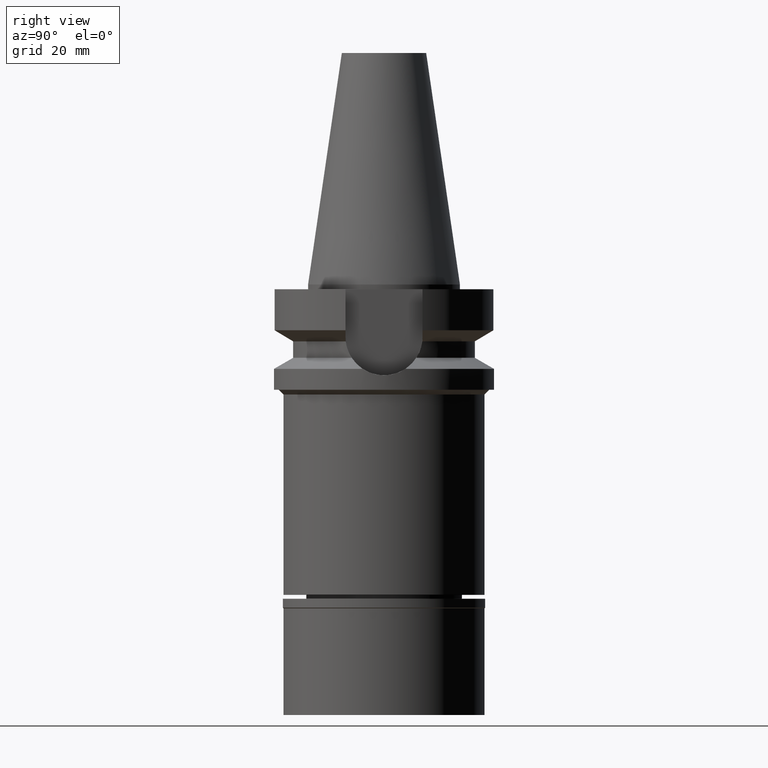
[diagram: clean part render]
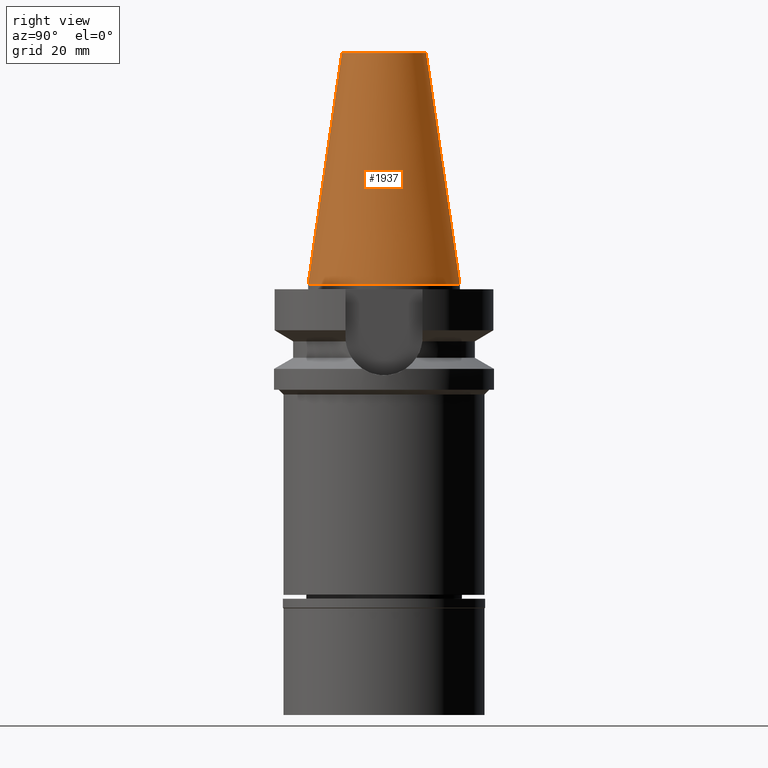
[diagram: same view with one face highlighted and labeled with its STEP entity id]
A machine part, right view. The second image highlights one B-rep face of the part: STEP entity #1937.
In plain terms, the highlighted conical surface has half-angle 8.297 deg.
Its self-contained STEP definition (entity closure, byte-faithful):
#15 = ORIENTED_EDGE ( 'NONE', *, *, #522, .T. ) ;
#89 = CIRCLE ( 'NONE', #2048, 8.816791732783000768 ) ;
#117 = VERTEX_POINT ( 'NONE', #921 ) ;
#196 = CIRCLE ( 'NONE', #2724, 15.87500000000000000 ) ;
#204 = CARTESIAN_POINT ( 'NONE',  ( 0.0000000000000000000, 8.816791732783000768, 48.39999999999999858 ) ) ;
#275 = EDGE_LOOP ( 'NONE', ( #15, #3002, #2422, #2522 ) ) ;
#338 = CARTESIAN_POINT ( 'NONE',  ( 0.0000000000000000000, -8.816791732783000768, 48.39999999999999858 ) ) ;
#369 = LINE ( 'NONE', #901, #2002 ) ;
#380 = DIRECTION ( 'NONE',  ( 0.0000000000000000000, 1.000000000000000000, 0.0000000000000000000 ) ) ;
#496 = VERTEX_POINT ( 'NONE', #3034 ) ;
#522 = EDGE_CURVE ( 'NONE', #547, #1713, #89, .T. ) ;
#547 = VERTEX_POINT ( 'NONE', #204 ) ;
#711 = CARTESIAN_POINT ( 'NONE',  ( 0.0000000000000000000, 0.0000000000000000000, -3.410605131648000255E-13 ) ) ;
#901 = CARTESIAN_POINT ( 'NONE',  ( 0.0000000000000000000, -8.816791732783000768, 48.39999999999999858 ) ) ;
#921 = CARTESIAN_POINT ( 'NONE',  ( 0.0000000000000000000, -15.87500000000000000, -3.410605131648000255E-13 ) ) ;
#1312 = DIRECTION ( 'NONE',  ( 0.0000000000000000000, 0.1443043893539925626, -0.9895333461855498891 ) ) ;
#1356 = DIRECTION ( 'NONE',  ( 0.0000000000000000000, 0.0000000000000000000, -1.000000000000000000 ) ) ;
#1428 = DIRECTION ( 'NONE',  ( 0.0000000000000000000, 1.000000000000000000, 0.0000000000000000000 ) ) ;
#1457 = EDGE_CURVE ( 'NONE', #496, #117, #196, .T. ) ;
#1627 = EDGE_CURVE ( 'NONE', #1713, #117, #369, .T. ) ;
#1713 = VERTEX_POINT ( 'NONE', #338 ) ;
#1865 = DIRECTION ( 'NONE',  ( 0.0000000000000000000, -0.1443043893539925626, -0.9895333461855498891 ) ) ;
#1911 = CONICAL_SURFACE ( 'NONE', #2588, 12.34589586639000025, 0.1448099680379422438 ) ;
#1937 = ADVANCED_FACE ( 'NONE', ( #2772 ), #1911, .T. ) ;
#2002 = VECTOR ( 'NONE', #1865, 1000.000000000000114 ) ;
#2013 = LINE ( 'NONE', #2905, #2877 ) ;
#2048 = AXIS2_PLACEMENT_3D ( 'NONE', #2764, #2987, #380 ) ;
#2332 = DIRECTION ( 'NONE',  ( 0.0000000000000000000, 0.0000000000000000000, -1.000000000000000000 ) ) ;
#2422 = ORIENTED_EDGE ( 'NONE', *, *, #1457, .F. ) ;
#2504 = CARTESIAN_POINT ( 'NONE',  ( 0.0000000000000000000, 0.0000000000000000000, 24.19999999999999929 ) ) ;
#2522 = ORIENTED_EDGE ( 'NONE', *, *, #2640, .F. ) ;
#2533 = DIRECTION ( 'NONE',  ( 0.0000000000000000000, -1.000000000000000000, 0.0000000000000000000 ) ) ;
#2588 = AXIS2_PLACEMENT_3D ( 'NONE', #2504, #1356, #2533 ) ;
#2640 = EDGE_CURVE ( 'NONE', #547, #496, #2013, .T. ) ;
#2724 = AXIS2_PLACEMENT_3D ( 'NONE', #711, #2332, #1428 ) ;
#2764 = CARTESIAN_POINT ( 'NONE',  ( 0.0000000000000000000, 0.0000000000000000000, 48.39999999999999858 ) ) ;
#2772 = FACE_OUTER_BOUND ( 'NONE', #275, .T. ) ;
#2877 = VECTOR ( 'NONE', #1312, 1000.000000000000114 ) ;
#2905 = CARTESIAN_POINT ( 'NONE',  ( 0.0000000000000000000, 8.816791732783000768, 48.39999999999999858 ) ) ;
#2987 = DIRECTION ( 'NONE',  ( 0.0000000000000000000, 0.0000000000000000000, -1.000000000000000000 ) ) ;
#3002 = ORIENTED_EDGE ( 'NONE', *, *, #1627, .T. ) ;
#3034 = CARTESIAN_POINT ( 'NONE',  ( 0.0000000000000000000, 15.87500000000000000, -1.136868377215999875E-13 ) ) ;